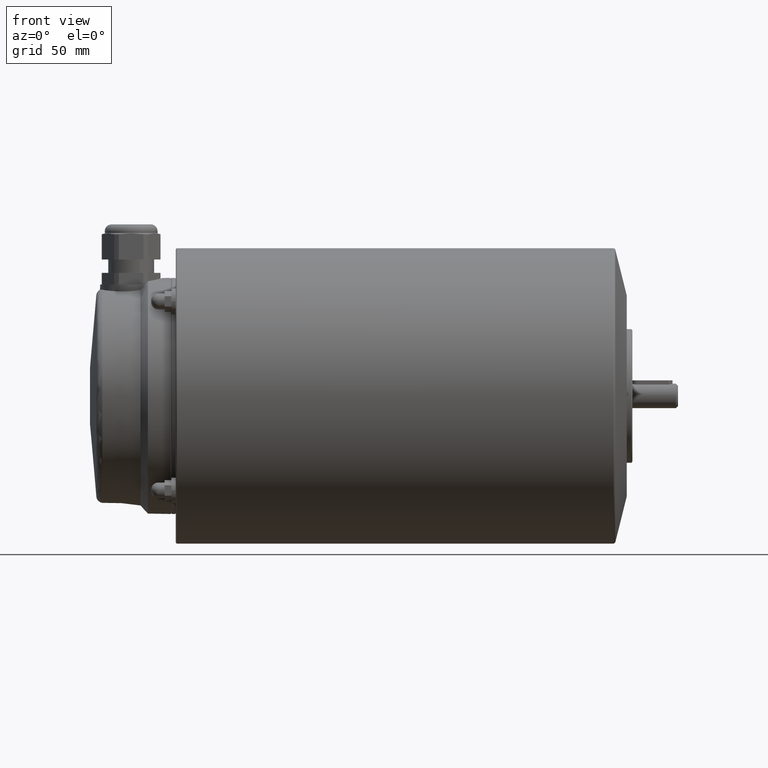
[diagram: clean part render]
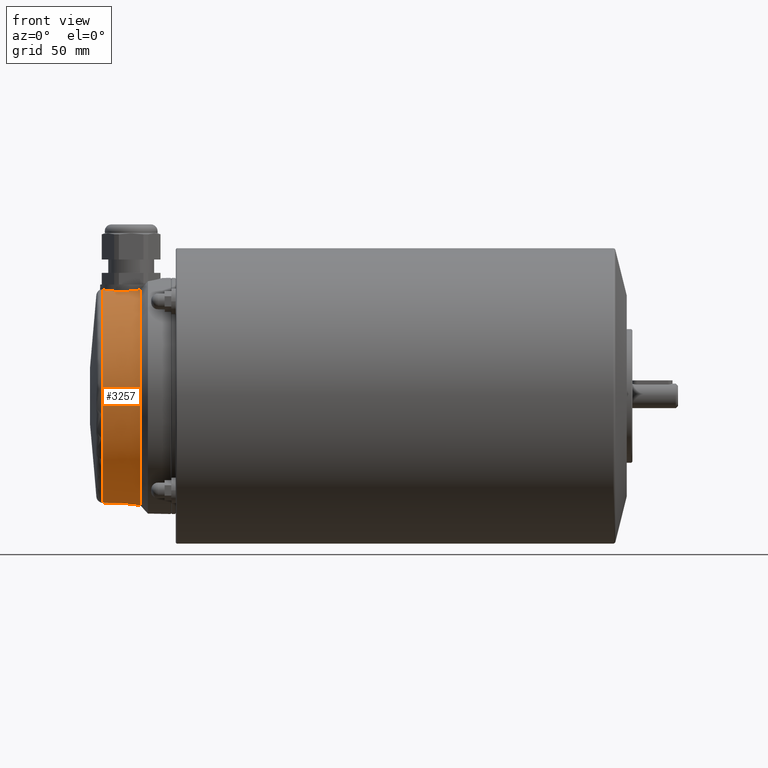
[diagram: same view with one face highlighted and labeled with its STEP entity id]
A machine part, front view. The second image highlights one B-rep face of the part: STEP entity #3257.
In plain terms, the highlighted conical surface has half-angle 5 deg.
Its self-contained STEP definition (entity closure, byte-faithful):
#37=CONICAL_SURFACE('',#3487,48.005414067341,0.0872664625997167);
#63=B_SPLINE_CURVE_WITH_KNOTS('',3,(#4616,#4617,#4618,#4619,#4620,#4621,
#4622,#4623,#4624),.UNSPECIFIED.,.F.,.F.,(4,1,1,1,1,1,4),(2.09649003451656E-7,
0.00257789577993032,0.00515558191085718,0.00773326804178405,0.0103109541727109,
0.0154663264345646,0.0206216986964184),.UNSPECIFIED.);
#64=B_SPLINE_CURVE_WITH_KNOTS('',3,(#4628,#4629,#4630,#4631,#4632,#4633,
#4634,#4635,#4636,#4637),.UNSPECIFIED.,.F.,.F.,(4,1,1,1,1,1,1,4),(5.0984213822134E-7,
0.00257812381647682,0.00515573779081542,0.00773335176515402,0.0103109657394926,
0.0128885797138312,0.0154661936881698,0.020621421636847),.UNSPECIFIED.);
#550=ORIENTED_EDGE('',*,*,#1072,.F.);
#551=ORIENTED_EDGE('',*,*,#1073,.T.);
#552=ORIENTED_EDGE('',*,*,#1074,.F.);
#553=ORIENTED_EDGE('',*,*,#1071,.F.);
#1071=EDGE_CURVE('',#1338,#1339,#1522,.T.);
#1072=EDGE_CURVE('',#1340,#1338,#63,.T.);
#1073=EDGE_CURVE('',#1340,#1341,#1523,.T.);
#1074=EDGE_CURVE('',#1339,#1341,#64,.T.);
#1338=VERTEX_POINT('',#4612);
#1339=VERTEX_POINT('',#4613);
#1340=VERTEX_POINT('',#4625);
#1341=VERTEX_POINT('',#4627);
#1522=CIRCLE('',#3486,48.005414067341);
#1523=CIRCLE('',#3488,49.5000000000336);
#1653=EDGE_LOOP('',(#550,#551,#552,#553));
#1896=FACE_BOUND('',#1653,.T.);
#3257=ADVANCED_FACE('',(#1896),#37,.T.);
#3486=AXIS2_PLACEMENT_3D('',#4614,#3905,#3906);
#3487=AXIS2_PLACEMENT_3D('',#4615,#3907,#3908);
#3488=AXIS2_PLACEMENT_3D('',#4626,#3909,#3910);
#3905=DIRECTION('',(-1.,0.,0.));
#3906=DIRECTION('',(0.,0.,1.));
#3907=DIRECTION('',(1.,0.,0.));
#3908=DIRECTION('',(0.,0.,-1.));
#3909=DIRECTION('',(-1.,0.,0.));
#3910=DIRECTION('',(0.,0.,1.));
#4612=CARTESIAN_POINT('',(-235.405153719347,5.42743102029273,47.6976180987775));
#4613=CARTESIAN_POINT('',(-235.405153719347,-5.42743102029273,47.6976180987775));
#4614=CARTESIAN_POINT('',(-235.405153719347,0.,0.));
#4615=CARTESIAN_POINT('',(-235.405153719347,0.,0.));
#4616=CARTESIAN_POINT('',(-218.321958337699,13.362034570681,47.6624173970987));
#4617=CARTESIAN_POINT('',(-219.141642518993,13.6183334629837,47.5160867621827));
#4618=CARTESIAN_POINT('',(-220.801977317158,13.9759808844539,47.2601924806413));
#4619=CARTESIAN_POINT('',(-223.408013042807,14.0504674311158,46.9996700851787));
#4620=CARTESIAN_POINT('',(-225.955428922597,13.6490766760329,46.8870337861557));
#4621=CARTESIAN_POINT('',(-229.245468975566,12.4833233188216,46.9200241063296));
#4622=CARTESIAN_POINT('',(-232.800980139962,9.94432105342515,47.2468099752815));
#4623=CARTESIAN_POINT('',(-234.73132862855,7.02962851376087,47.5746392432041));
#4624=CARTESIAN_POINT('',(-235.405153719347,5.42743102029273,47.6976180987775));
#4625=CARTESIAN_POINT('',(-218.321958337699,13.362034570681,47.6624173970987));
#4626=CARTESIAN_POINT('',(-218.321958337699,0.,0.));
#4627=CARTESIAN_POINT('',(-218.321958337699,-13.362034570681,47.6624173970987));
#4628=CARTESIAN_POINT('',(-235.405153719347,-5.42743102029272,47.6976180987775));
#4629=CARTESIAN_POINT('',(-235.068092740591,-6.22888270662011,47.6361015806305));
#4630=CARTESIAN_POINT('',(-234.261458102571,-7.73913928324813,47.4953266441068));
#4631=CARTESIAN_POINT('',(-232.633291633505,-9.77469429232583,47.2598146865373));
#4632=CARTESIAN_POINT('',(-230.684731505195,-11.4565728296705,47.0513957257093));
#4633=CARTESIAN_POINT('',(-228.421666227869,-12.7741333702054,46.9122127186834));
#4634=CARTESIAN_POINT('',(-225.993888881224,-13.639390667875,46.8863872519639));
#4635=CARTESIAN_POINT('',(-222.545538792702,-14.1883266575196,47.0367621320885));
#4636=CARTESIAN_POINT('',(-219.962285497619,-13.8749321520859,47.3695849620477));
#4637=CARTESIAN_POINT('',(-218.321958337699,-13.362034570681,47.6624173970987));